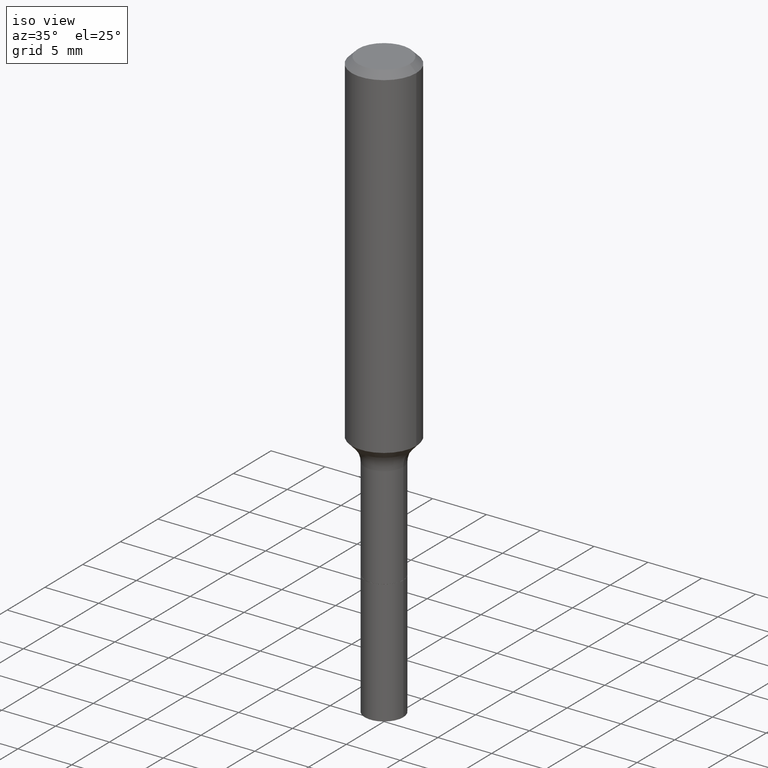
[diagram: clean part render]
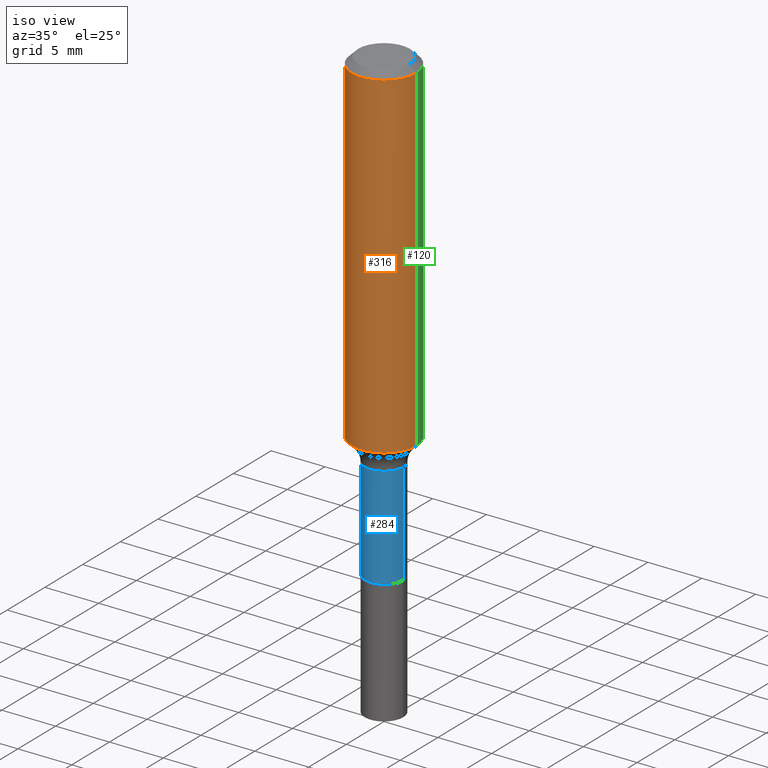
[diagram: same view with three faces highlighted in distinct colors, each labeled with its STEP entity id]
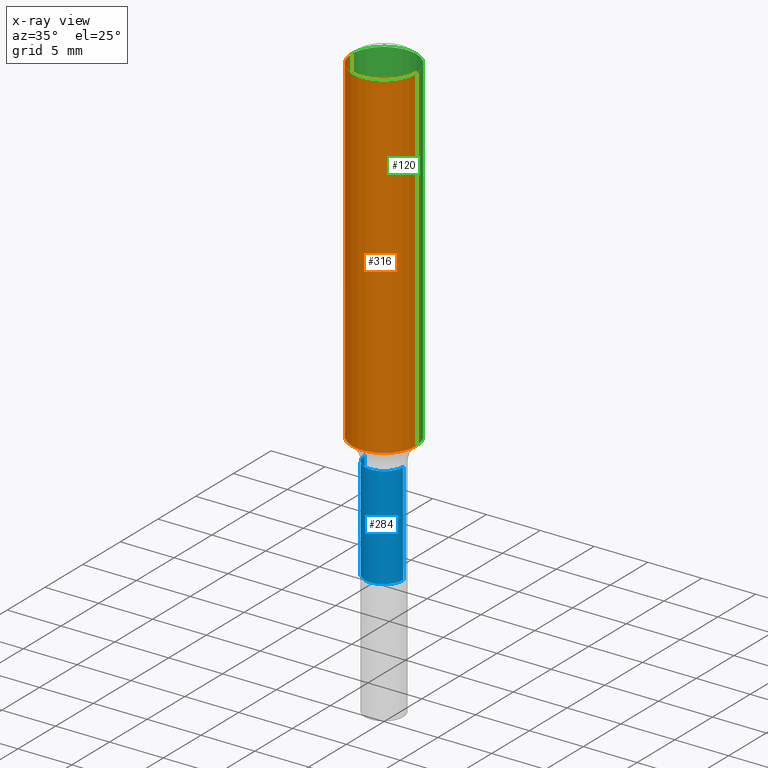
[diagram: x-ray of the same camera — body ghosted, the three highlighted faces saturated]
A machine part, iso view with three faces highlighted in distinct colors.
The next image is the same camera in x-ray (body ghosted, the three faces saturated) — at least one of them is partly hidden behind the body in this view.
Their STEP definitions:

[orange] entity #316 — the highlighted cylindrical surface (partial cylindrical patch) has radius 2.9997 mm, axis along (-0, 0, 1).
#27 = VECTOR ( 'NONE', #64, 39.37007874015748143 ) ;
#59 = CARTESIAN_POINT ( 'NONE',  ( 5.776197320209329284E-31, -8.246878922347561759E-17, -0.02362000000000015129 ) ) ;
#62 = CARTESIAN_POINT ( 'NONE',  ( 0.1181000000000000660, -8.246878922347485584E-16, 5.758764772215003944E-30 ) ) ;
#64 = DIRECTION ( 'NONE',  ( -2.445468806185136877E-29, 3.491481338843145188E-15, 1.000000000000000000 ) ) ;
#67 = AXIS2_PLACEMENT_3D ( 'NONE', #162, #163, #320 ) ;
#96 = CARTESIAN_POINT ( 'NONE',  ( -0.1181000000000000660, 8.391509709326787887E-16, -5.809262341591047287E-30 ) ) ;
#99 = ORIENTED_EDGE ( 'NONE', *, *, #224, .T. ) ;
#126 = AXIS2_PLACEMENT_3D ( 'NONE', #59, #261, #423 ) ;
#128 = VERTEX_POINT ( 'NONE', #344 ) ;
#147 = CARTESIAN_POINT ( 'NONE',  ( -0.1180999999999999966, -1.394084180029604768E-15, -0.02362000000000015129 ) ) ;
#162 = CARTESIAN_POINT ( 'NONE',  ( 0.000000000000000000, 0.000000000000000000, 0.000000000000000000 ) ) ;
#163 = DIRECTION ( 'NONE',  ( -2.445468806185136597E-29, 3.491481338843145583E-15, 1.000000000000000000 ) ) ;
#167 = CARTESIAN_POINT ( 'NONE',  ( 0.1181000000000001493, -5.208689404935841102E-15, -1.255627937611624390 ) ) ;
#176 = ORIENTED_EDGE ( 'NONE', *, *, #392, .T. ) ;
#199 = DIRECTION ( 'NONE',  ( 1.000000000000000000, -6.982962677686264344E-15, 0.000000000000000000 ) ) ;
#209 = VERTEX_POINT ( 'NONE', #147 ) ;
#213 = VERTEX_POINT ( 'NONE', #304 ) ;
#224 = EDGE_CURVE ( 'NONE', #128, #342, #451, .T. ) ;
#252 = EDGE_LOOP ( 'NONE', ( #337, #99, #176, #280 ) ) ;
#261 = DIRECTION ( 'NONE',  ( -2.445468806185136597E-29, 3.491481338843145583E-15, 1.000000000000000000 ) ) ;
#280 = ORIENTED_EDGE ( 'NONE', *, *, #439, .F. ) ;
#288 = CARTESIAN_POINT ( 'NONE',  ( 3.070598953603803991E-29, -4.384001512701092839E-15, -1.255627937611624390 ) ) ;
#291 = DIRECTION ( 'NONE',  ( -2.445468806185136877E-29, 3.491481338843145188E-15, 1.000000000000000000 ) ) ;
#304 = CARTESIAN_POINT ( 'NONE',  ( 0.1180999999999999966, -9.071566814582237199E-16, -0.02362000000000015129 ) ) ;
#316 = ADVANCED_FACE ( 'NONE', ( #361 ), #408, .T. ) ;
#320 = DIRECTION ( 'NONE',  ( 1.000000000000000000, -6.982962677686266711E-15, 4.876176775795936353E-29 ) ) ;
#324 = LINE ( 'NONE', #62, #27 ) ;
#337 = ORIENTED_EDGE ( 'NONE', *, *, #375, .F. ) ;
#342 = VERTEX_POINT ( 'NONE', #167 ) ;
#344 = CARTESIAN_POINT ( 'NONE',  ( -0.1181000000000001493, -3.544850541768413065E-15, -1.255627937611624390 ) ) ;
#361 = FACE_OUTER_BOUND ( 'NONE', #252, .T. ) ;
#375 = EDGE_CURVE ( 'NONE', #128, #209, #418, .T. ) ;
#392 = EDGE_CURVE ( 'NONE', #342, #213, #324, .T. ) ;
#408 = CYLINDRICAL_SURFACE ( 'NONE', #67, 0.1181000000000000660 ) ;
#418 = LINE ( 'NONE', #96, #494 ) ;
#423 = DIRECTION ( 'NONE',  ( 1.000000000000000000, -6.982962677686266711E-15, 0.000000000000000000 ) ) ;
#439 = EDGE_CURVE ( 'NONE', #209, #213, #444, .T. ) ;
#444 = CIRCLE ( 'NONE', #126, 0.1180999999999999966 ) ;
#451 = CIRCLE ( 'NONE', #517, 0.1181000000000001493 ) ;
#480 = DIRECTION ( 'NONE',  ( -2.445468806185136597E-29, 3.491481338843145583E-15, 1.000000000000000000 ) ) ;
#494 = VECTOR ( 'NONE', #291, 39.37007874015748143 ) ;
#517 = AXIS2_PLACEMENT_3D ( 'NONE', #288, #480, #199 ) ;

[blue] entity #284 — the highlighted cylindrical surface (edge-blend (fillet) strip) has radius 1.7856 mm, axis along (-0, 0, 1).
#15 = CARTESIAN_POINT ( 'NONE',  ( 4.186398049308334724E-29, -5.977066903965580577E-15, -1.711899999999999755 ) ) ;
#47 = DIRECTION ( 'NONE',  ( -2.445468806185136597E-29, 3.491481338843145583E-15, 1.000000000000000000 ) ) ;
#48 = VERTEX_POINT ( 'NONE', #371 ) ;
#49 = DIRECTION ( 'NONE',  ( -2.445468806185136877E-29, 3.491481338843145188E-15, 1.000000000000000000 ) ) ;
#55 = CARTESIAN_POINT ( 'NONE',  ( -0.07029999999999998750, 4.995115432393503418E-16, -3.458011368449198169E-30 ) ) ;
#63 = ORIENTED_EDGE ( 'NONE', *, *, #476, .T. ) ;
#68 = CARTESIAN_POINT ( 'NONE',  ( 3.273015450198186344E-29, -4.672998623907665346E-15, -1.338399999999999812 ) ) ;
#84 = VERTEX_POINT ( 'NONE', #273 ) ;
#93 = CIRCLE ( 'NONE', #219, 0.07030000000000000138 ) ;
#119 = DIRECTION ( 'NONE',  ( 1.000000000000000000, -6.982962677686266711E-15, 4.876176775795935232E-29 ) ) ;
#145 = ORIENTED_EDGE ( 'NONE', *, *, #206, .F. ) ;
#150 = AXIS2_PLACEMENT_3D ( 'NONE', #279, #47, #119 ) ;
#156 = VECTOR ( 'NONE', #49, 39.37007874015748143 ) ;
#168 = ORIENTED_EDGE ( 'NONE', *, *, #492, .F. ) ;
#206 = EDGE_CURVE ( 'NONE', #259, #290, #410, .T. ) ;
#207 = CARTESIAN_POINT ( 'NONE',  ( 0.07029999999999995974, -5.163900900149009505E-15, -1.338399999999999812 ) ) ;
#214 = EDGE_CURVE ( 'NONE', #48, #290, #466, .T. ) ;
#219 = AXIS2_PLACEMENT_3D ( 'NONE', #15, #379, #294 ) ;
#228 = DIRECTION ( 'NONE',  ( 1.000000000000000000, -6.982962677686269077E-15, 0.000000000000000000 ) ) ;
#230 = CARTESIAN_POINT ( 'NONE',  ( 0.07029999999999998750, -4.909022762413444543E-16, 3.427952273384541736E-30 ) ) ;
#251 = AXIS2_PLACEMENT_3D ( 'NONE', #68, #464, #228 ) ;
#259 = VERTEX_POINT ( 'NONE', #441 ) ;
#273 = CARTESIAN_POINT ( 'NONE',  ( -0.07030000000000000138, -4.825521220697272718E-15, -1.711899999999999755 ) ) ;
#279 = CARTESIAN_POINT ( 'NONE',  ( 0.000000000000000000, 0.000000000000000000, 0.000000000000000000 ) ) ;
#284 = ADVANCED_FACE ( 'NONE', ( #314 ), #448, .T. ) ;
#290 = VERTEX_POINT ( 'NONE', #207 ) ;
#294 = DIRECTION ( 'NONE',  ( 1.000000000000000000, -6.982962677686265133E-15, 0.000000000000000000 ) ) ;
#314 = FACE_OUTER_BOUND ( 'NONE', #325, .T. ) ;
#325 = EDGE_LOOP ( 'NONE', ( #168, #63, #378, #145 ) ) ;
#371 = CARTESIAN_POINT ( 'NONE',  ( 0.07030000000000000138, -6.467969180206924735E-15, -1.711899999999999755 ) ) ;
#377 = LINE ( 'NONE', #55, #467 ) ;
#378 = ORIENTED_EDGE ( 'NONE', *, *, #214, .T. ) ;
#379 = DIRECTION ( 'NONE',  ( -2.445468806185136597E-29, 3.491481338843145583E-15, 1.000000000000000000 ) ) ;
#410 = CIRCLE ( 'NONE', #251, 0.07029999999999995974 ) ;
#441 = CARTESIAN_POINT ( 'NONE',  ( -0.07029999999999995974, -4.825521220697272718E-15, -1.338399999999999812 ) ) ;
#448 = CYLINDRICAL_SURFACE ( 'NONE', #150, 0.07029999999999998750 ) ;
#453 = DIRECTION ( 'NONE',  ( -2.445468806185136877E-29, 3.491481338843145188E-15, 1.000000000000000000 ) ) ;
#464 = DIRECTION ( 'NONE',  ( -2.445468806185136597E-29, 3.491481338843145583E-15, 1.000000000000000000 ) ) ;
#466 = LINE ( 'NONE', #230, #156 ) ;
#467 = VECTOR ( 'NONE', #453, 39.37007874015748143 ) ;
#476 = EDGE_CURVE ( 'NONE', #84, #48, #93, .T. ) ;
#492 = EDGE_CURVE ( 'NONE', #84, #259, #377, .T. ) ;

[green] entity #120 — the highlighted cylindrical surface (partial cylindrical patch) has radius 2.9997 mm, axis along (-0, 0, 1).
#11 = EDGE_CURVE ( 'NONE', #213, #209, #116, .T. ) ;
#27 = VECTOR ( 'NONE', #64, 39.37007874015748143 ) ;
#61 = DIRECTION ( 'NONE',  ( -2.445468806185136597E-29, 3.491481338843145583E-15, 1.000000000000000000 ) ) ;
#62 = CARTESIAN_POINT ( 'NONE',  ( 0.1181000000000000660, -8.246878922347485584E-16, 5.758764772215003944E-30 ) ) ;
#64 = DIRECTION ( 'NONE',  ( -2.445468806185136877E-29, 3.491481338843145188E-15, 1.000000000000000000 ) ) ;
#96 = CARTESIAN_POINT ( 'NONE',  ( -0.1181000000000000660, 8.391509709326787887E-16, -5.809262341591047287E-30 ) ) ;
#112 = DIRECTION ( 'NONE',  ( 1.000000000000000000, -6.982962677686266711E-15, 4.876176775795936353E-29 ) ) ;
#116 = CIRCLE ( 'NONE', #191, 0.1180999999999999966 ) ;
#120 = ADVANCED_FACE ( 'NONE', ( #198 ), #475, .T. ) ;
#128 = VERTEX_POINT ( 'NONE', #344 ) ;
#143 = EDGE_CURVE ( 'NONE', #342, #128, #435, .T. ) ;
#147 = CARTESIAN_POINT ( 'NONE',  ( -0.1180999999999999966, -1.394084180029604768E-15, -0.02362000000000015129 ) ) ;
#148 = AXIS2_PLACEMENT_3D ( 'NONE', #352, #187, #112 ) ;
#155 = CARTESIAN_POINT ( 'NONE',  ( 3.070598953603803991E-29, -4.384001512701092839E-15, -1.255627937611624390 ) ) ;
#167 = CARTESIAN_POINT ( 'NONE',  ( 0.1181000000000001493, -5.208689404935841102E-15, -1.255627937611624390 ) ) ;
#179 = ORIENTED_EDGE ( 'NONE', *, *, #392, .F. ) ;
#187 = DIRECTION ( 'NONE',  ( -2.445468806185136597E-29, 3.491481338843145583E-15, 1.000000000000000000 ) ) ;
#191 = AXIS2_PLACEMENT_3D ( 'NONE', #496, #61, #221 ) ;
#196 = DIRECTION ( 'NONE',  ( -2.445468806185136597E-29, 3.491481338843145583E-15, 1.000000000000000000 ) ) ;
#198 = FACE_OUTER_BOUND ( 'NONE', #262, .T. ) ;
#203 = ORIENTED_EDGE ( 'NONE', *, *, #11, .F. ) ;
#209 = VERTEX_POINT ( 'NONE', #147 ) ;
#213 = VERTEX_POINT ( 'NONE', #304 ) ;
#221 = DIRECTION ( 'NONE',  ( 1.000000000000000000, -6.982962677686266711E-15, 0.000000000000000000 ) ) ;
#262 = EDGE_LOOP ( 'NONE', ( #493, #366, #203, #179 ) ) ;
#291 = DIRECTION ( 'NONE',  ( -2.445468806185136877E-29, 3.491481338843145188E-15, 1.000000000000000000 ) ) ;
#304 = CARTESIAN_POINT ( 'NONE',  ( 0.1180999999999999966, -9.071566814582237199E-16, -0.02362000000000015129 ) ) ;
#324 = LINE ( 'NONE', #62, #27 ) ;
#342 = VERTEX_POINT ( 'NONE', #167 ) ;
#344 = CARTESIAN_POINT ( 'NONE',  ( -0.1181000000000001493, -3.544850541768413065E-15, -1.255627937611624390 ) ) ;
#352 = CARTESIAN_POINT ( 'NONE',  ( 0.000000000000000000, 0.000000000000000000, 0.000000000000000000 ) ) ;
#366 = ORIENTED_EDGE ( 'NONE', *, *, #375, .T. ) ;
#375 = EDGE_CURVE ( 'NONE', #128, #209, #418, .T. ) ;
#389 = DIRECTION ( 'NONE',  ( 1.000000000000000000, -6.982962677686264344E-15, 0.000000000000000000 ) ) ;
#392 = EDGE_CURVE ( 'NONE', #342, #213, #324, .T. ) ;
#418 = LINE ( 'NONE', #96, #494 ) ;
#435 = CIRCLE ( 'NONE', #443, 0.1181000000000001493 ) ;
#443 = AXIS2_PLACEMENT_3D ( 'NONE', #155, #196, #389 ) ;
#475 = CYLINDRICAL_SURFACE ( 'NONE', #148, 0.1181000000000000660 ) ;
#493 = ORIENTED_EDGE ( 'NONE', *, *, #143, .T. ) ;
#494 = VECTOR ( 'NONE', #291, 39.37007874015748143 ) ;
#496 = CARTESIAN_POINT ( 'NONE',  ( 5.776197320209329284E-31, -8.246878922347561759E-17, -0.02362000000000015129 ) ) ;